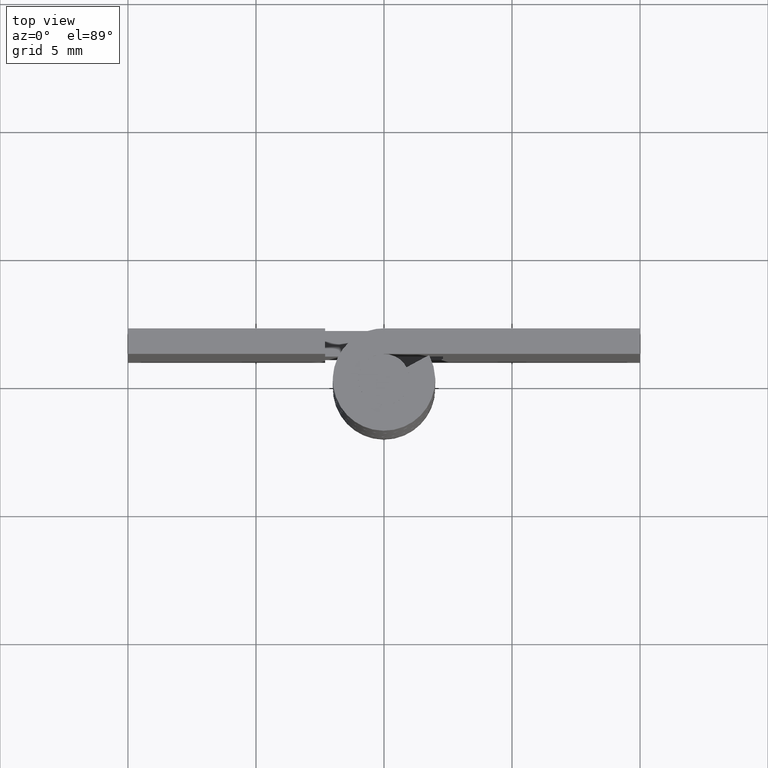
[diagram: clean part render]
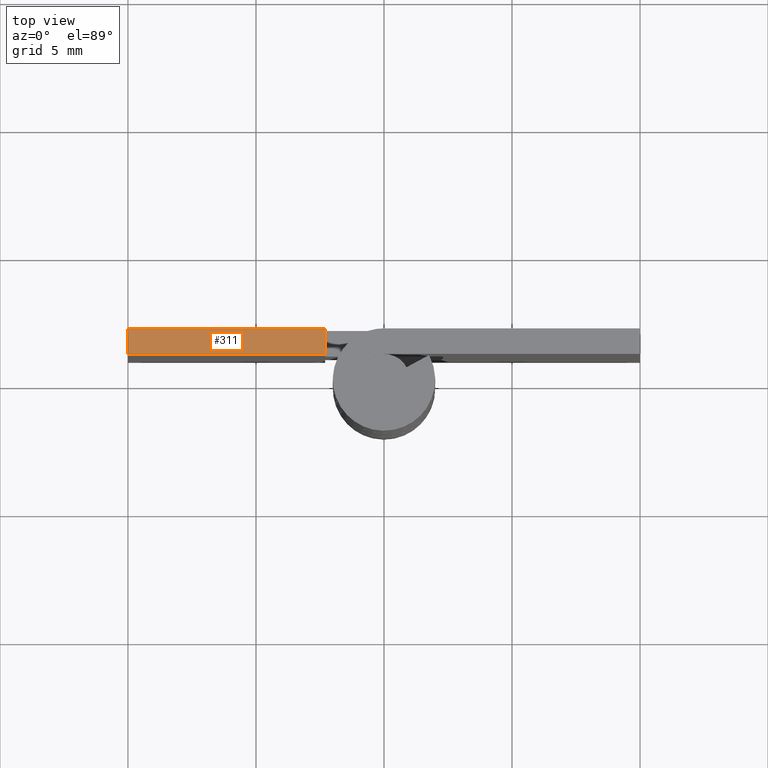
[diagram: same view with one face highlighted and labeled with its STEP entity id]
A machine part, top view. The second image highlights one B-rep face of the part: STEP entity #311.
In plain terms, the highlighted face is a freeform B-spline surface patch.
Its self-contained STEP definition (entity closure, byte-faithful):
#164=CARTESIAN_POINT('',(-2.300003000000000,2.0,20.0));
#165=VERTEX_POINT('',#164);
#171=CARTESIAN_POINT('',(-2.300003000000000,1.0,20.0));
#172=VERTEX_POINT('',#171);
#173=CARTESIAN_POINT('',(-2.300003000000000,1.0,20.0));
#174=CARTESIAN_POINT('',(-2.300003000000000,2.0,20.0));
#175=QUASI_UNIFORM_CURVE('',1,(#173,#174),.UNSPECIFIED.,.F.,.U.);
#176=EDGE_CURVE('',#172,#165,#175,.T.);
#284=CARTESIAN_POINT('',(-10.384614835225911,0.950050001938194,20.0));
#285=CARTESIAN_POINT('',(-1.915387958244075,0.950050001938194,20.0));
#286=CARTESIAN_POINT('',(-10.384614835225911,2.049950024883896,20.0));
#287=CARTESIAN_POINT('',(-1.915387958244075,2.049950024883896,20.0));
#288=B_SPLINE_SURFACE_WITH_KNOTS('',1,1,((#284,#286),(#285,#287)),.UNSPECIFIED.,.F.,.F.,.U.,(2,2),(2,2),(0.0,8.469226876981837),(0.041708334948495,0.958291687403247),.UNSPECIFIED.);
#289=CARTESIAN_POINT('',(-10.0,1.0,20.0));
#290=VERTEX_POINT('',#289);
#291=CARTESIAN_POINT('',(-10.0,1.0,20.0));
#292=CARTESIAN_POINT('',(-2.300003000000000,1.0,20.0));
#293=QUASI_UNIFORM_CURVE('',1,(#291,#292),.UNSPECIFIED.,.F.,.U.);
#294=EDGE_CURVE('',#290,#172,#293,.T.);
#295=ORIENTED_EDGE('',*,*,#294,.T.);
#296=ORIENTED_EDGE('',*,*,#176,.T.);
#297=CARTESIAN_POINT('',(-10.0,2.0,20.0));
#298=VERTEX_POINT('',#297);
#299=CARTESIAN_POINT('',(-2.300003000000000,2.0,20.0));
#300=CARTESIAN_POINT('',(-10.0,2.0,20.0));
#301=QUASI_UNIFORM_CURVE('',1,(#299,#300),.UNSPECIFIED.,.F.,.U.);
#302=EDGE_CURVE('',#165,#298,#301,.T.);
#303=ORIENTED_EDGE('',*,*,#302,.T.);
#304=CARTESIAN_POINT('',(-10.0,2.0,20.0));
#305=CARTESIAN_POINT('',(-10.0,1.0,20.0));
#306=QUASI_UNIFORM_CURVE('',1,(#304,#305),.UNSPECIFIED.,.F.,.U.);
#307=EDGE_CURVE('',#298,#290,#306,.T.);
#308=ORIENTED_EDGE('',*,*,#307,.T.);
#309=EDGE_LOOP('',(#295,#296,#303,#308));
#310=FACE_OUTER_BOUND('',#309,.T.);
#311=ADVANCED_FACE('',(#310),#288,.T.);